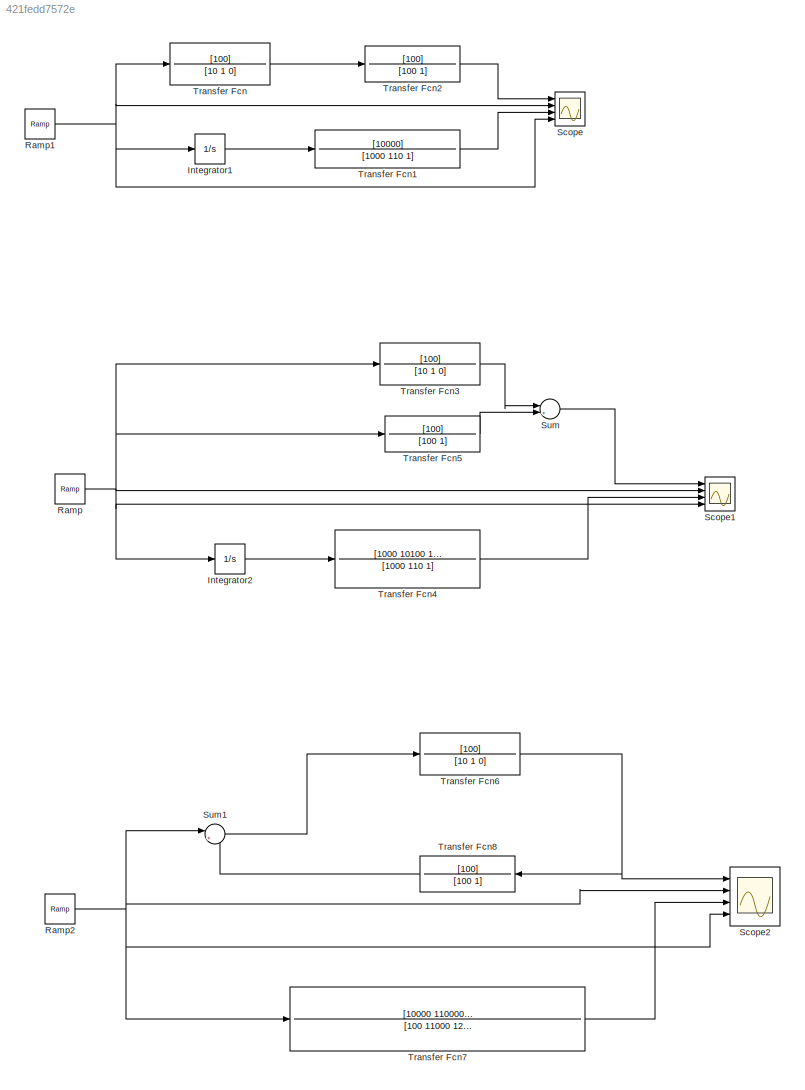
MODEL slx_421fedd7572e
KIND model
CONFIG AbsTol = auto
CONFIG EnableMultiTasking = off
CONFIG FixedStep = auto
CONFIG MaxStep = auto
CONFIG MinStep = auto
CONFIG RelTol = 1e-3
CONFIG SampleTimeConstraint = Unconstrained
CONFIG Solver = VariableStepAuto
CONFIG SolverName = VariableStepAuto
CONFIG StartTime = 0.0
CONFIG StopTime = 10
WORKSPACE source: mxarray member
WORKSPACE k = 0.5
BLOCK [Integrator] Integrator1
  Ports = [1, 1]
BLOCK [Integrator] Integrator2
  Ports = [1, 1]
BLOCK [Reference] Ramp  REF=simulink/Sources/Ramp
  Ports = [0, 1]
  SourceBlock = simulink/Sources/Ramp
  SourceProductBaseCode = SL
  SourceProductName = Simulink
  SourceType = Ramp
BLOCK [Reference] Ramp1  REF=simulink/Sources/Ramp
  Ports = [0, 1]
  SourceBlock = simulink/Sources/Ramp
  SourceProductBaseCode = SL
  SourceProductName = Simulink
  SourceType = Ramp
BLOCK [Reference] Ramp2  REF=simulink/Sources/Ramp
  Ports = [0, 1]
  SourceBlock = simulink/Sources/Ramp
  SourceProductBaseCode = SL
  SourceProductName = Simulink
  SourceType = Ramp
BLOCK [Scope] Scope
  Floating = off
  NumInputPorts = 4
  Ports = [4]
  ScopeSpecificationString = Simulink.scopes.TimeScopeBlockCfg('CurrentConfiguration', extmgr.ConfigurationSet(extmgr.Configuration('Core','General UI',true,'FigureColor',[1 1 1]),extmgr.Configuration('Core','Source UI',true),extmgr.Configuration('Sources','WiredSimulink',true),extmgr.Configuration('Visuals','Time Domain',true,'SerializedDisplays',{struct('MinYLimReal','-423.07516','MaxYLimReal','3807.67647','YLabelReal','','...<+2464ch>
BLOCK [Scope] Scope1
  Floating = off
  NumInputPorts = 4
  Ports = [4]
  ScopeSpecificationString = Simulink.scopes.TimeScopeBlockCfg('CurrentConfiguration', extmgr.ConfigurationSet(extmgr.Configuration('Core','General UI',true,'FigureColor',[1 1 1]),extmgr.Configuration('Core','Source UI',true),extmgr.Configuration('Sources','WiredSimulink',true,'DataLoggingVariableName','ScopeData1'),extmgr.Configuration('Visuals','Time Domain',true,'SerializedDisplays',{struct('MinYLimReal','-171.19749','MaxY...<+2616ch>
BLOCK [Scope] Scope2
  Floating = off
  NumInputPorts = 4
  Ports = [4]
  ScopeSpecificationString = Simulink.scopes.TimeScopeBlockCfg('CurrentConfiguration', extmgr.ConfigurationSet(extmgr.Configuration('Core','General UI',true,'FigureColor',[1 1 1]),extmgr.Configuration('Core','Source UI',true),extmgr.Configuration('Sources','WiredSimulink',true,'DataLoggingVariableName','ScopeData2'),extmgr.Configuration('Visuals','Time Domain',true,'SerializedDisplays',{struct('MinYLimReal','-25365.79166','Ma...<+2522ch>
BLOCK [Sum] Sum
  IconShape = round
  InputSameDT = off
  Inputs = |++
  OutDataTypeStr = Inherit: Inherit via internal rule
  Ports = [2, 1]
  SaturateOnIntegerOverflow = off
BLOCK [Sum] Sum1
  IconShape = round
  InputSameDT = off
  Inputs = |+-
  OutDataTypeStr = Inherit: Inherit via internal rule
  Ports = [2, 1]
  SaturateOnIntegerOverflow = off
BLOCK [TransferFcn] Transfer Fcn
  Denominator = [10 1 0]
  Numerator = [100]
BLOCK [TransferFcn] Transfer Fcn1
  Denominator = [1000 110 1]
  Numerator = [10000]
BLOCK [TransferFcn] Transfer Fcn2
  Denominator = [100 1]
  Numerator = [100]
BLOCK [TransferFcn] Transfer Fcn3
  Denominator = [10 1 0]
  Numerator = [100]
BLOCK [TransferFcn] Transfer Fcn4
  Denominator = [1000 110 1]
  Numerator = [1000 10100 100]
BLOCK [TransferFcn] Transfer Fcn5
  Denominator = [100 1]
  Numerator = [100]
BLOCK [TransferFcn] Transfer Fcn6
  Denominator = [10 1 0]
  Numerator = [100]
BLOCK [TransferFcn] Transfer Fcn7
  Denominator = [100 11000 120 1001 100000 1]
  Numerator = [10000 110000 100 1]
BLOCK [TransferFcn] Transfer Fcn8
  Denominator = [100 1]
  Numerator = [100]
LINE Integrator1:1 -> Transfer Fcn1:1
LINE Integrator2:1 -> Transfer Fcn4:1
NET Ramp1:1 -> Integrator1:1, Scope:2, Scope:4, Transfer Fcn:1
NET Ramp2:1 -> Scope2:2, Scope2:4, Sum1:1, Transfer Fcn7:1
NET Ramp:1 -> Integrator2:1, Scope1:2, Scope1:4, Transfer Fcn3:1, Transfer Fcn5:1
LINE Sum1:1 -> Transfer Fcn6:1
LINE Sum:1 -> Scope1:1
LINE Transfer Fcn1:1 -> Scope:3
LINE Transfer Fcn2:1 -> Scope:1
LINE Transfer Fcn3:1 -> Sum:1
LINE Transfer Fcn4:1 -> Scope1:3
LINE Transfer Fcn5:1 -> Sum:2
NET Transfer Fcn6:1 -> Scope2:1, Transfer Fcn8:1
LINE Transfer Fcn7:1 -> Scope2:3
LINE Transfer Fcn8:1 -> Sum1:2
LINE Transfer Fcn:1 -> Transfer Fcn2:1
note: NET lines group one-source signal fan-out (src -> all destinations, sorted); 1:1 wires keep LINE
